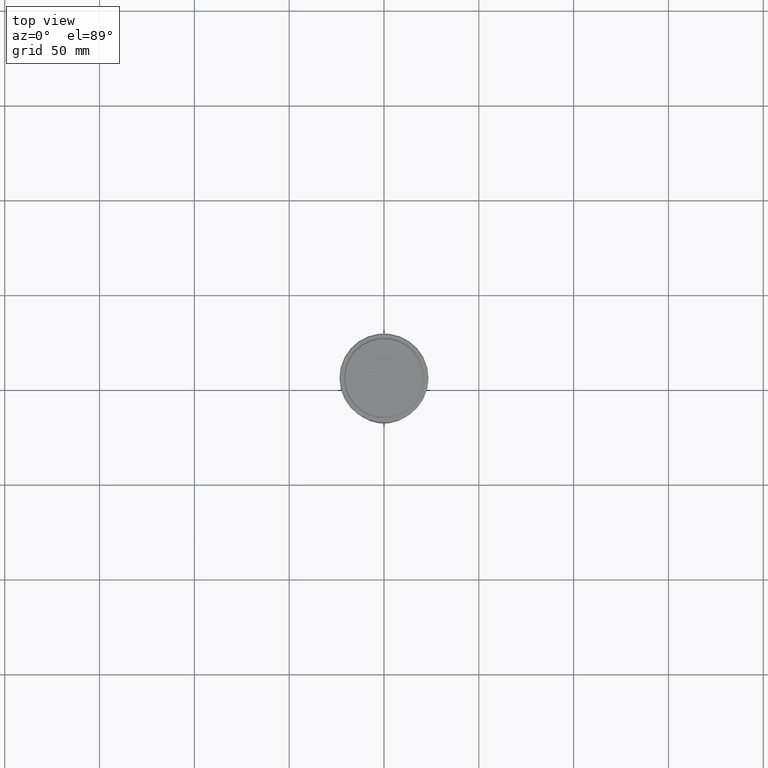
[diagram: clean part render]
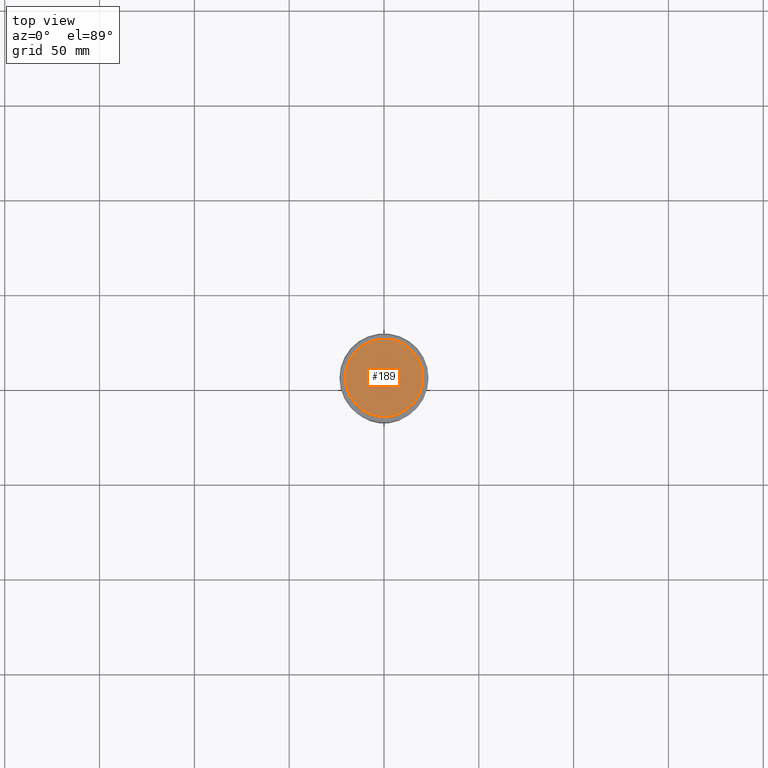
[diagram: same view with one face highlighted and labeled with its STEP entity id]
A machine part, top view. The second image highlights one B-rep face of the part: STEP entity #189.
In plain terms, the highlighted planar face has unit normal (0, -0, 1).
Its self-contained STEP definition (entity closure, byte-faithful):
#103 = EDGE_CURVE ( 'NONE', #1387, #1253, #1033, .T. ) ;
#188 = AXIS2_PLACEMENT_3D ( 'NONE', #302, #629, #327 ) ;
#189 = ADVANCED_FACE ( 'NONE', ( #875 ), #660, .T. ) ;
#302 = CARTESIAN_POINT ( 'NONE',  ( 0.000000000000000000, 0.000000000000000000, 0.000000000000000000 ) ) ;
#321 = CARTESIAN_POINT ( 'NONE',  ( -20.50000000000001776, 0.000000000000000000, 0.000000000000000000 ) ) ;
#327 = DIRECTION ( 'NONE',  ( 1.000000000000000000, 0.000000000000000000, 0.000000000000000000 ) ) ;
#333 = EDGE_LOOP ( 'NONE', ( #1143, #527 ) ) ;
#383 = DIRECTION ( 'NONE',  ( -0.000000000000000000, -0.000000000000000000, 1.000000000000000000 ) ) ;
#421 = AXIS2_PLACEMENT_3D ( 'NONE', #1179, #737, #1314 ) ;
#527 = ORIENTED_EDGE ( 'NONE', *, *, #618, .T. ) ;
#544 = CIRCLE ( 'NONE', #885, 20.50000000000001776 ) ;
#601 = CARTESIAN_POINT ( 'NONE',  ( 20.50000000000001776, 2.541142108230758663E-15, 0.000000000000000000 ) ) ;
#618 = EDGE_CURVE ( 'NONE', #1253, #1387, #544, .T. ) ;
#629 = DIRECTION ( 'NONE',  ( 0.000000000000000000, -0.000000000000000000, 1.000000000000000000 ) ) ;
#660 = PLANE ( 'NONE',  #188 ) ;
#737 = DIRECTION ( 'NONE',  ( -0.000000000000000000, -0.000000000000000000, 1.000000000000000000 ) ) ;
#875 = FACE_OUTER_BOUND ( 'NONE', #333, .T. ) ;
#885 = AXIS2_PLACEMENT_3D ( 'NONE', #1146, #383, #1371 ) ;
#1033 = CIRCLE ( 'NONE', #421, 20.50000000000001776 ) ;
#1143 = ORIENTED_EDGE ( 'NONE', *, *, #103, .T. ) ;
#1146 = CARTESIAN_POINT ( 'NONE',  ( 0.000000000000000000, 0.000000000000000000, 0.000000000000000000 ) ) ;
#1179 = CARTESIAN_POINT ( 'NONE',  ( 0.000000000000000000, 0.000000000000000000, 0.000000000000000000 ) ) ;
#1253 = VERTEX_POINT ( 'NONE', #601 ) ;
#1314 = DIRECTION ( 'NONE',  ( 1.000000000000000000, 0.000000000000000000, 0.000000000000000000 ) ) ;
#1371 = DIRECTION ( 'NONE',  ( 1.000000000000000000, 0.000000000000000000, 0.000000000000000000 ) ) ;
#1387 = VERTEX_POINT ( 'NONE', #321 ) ;